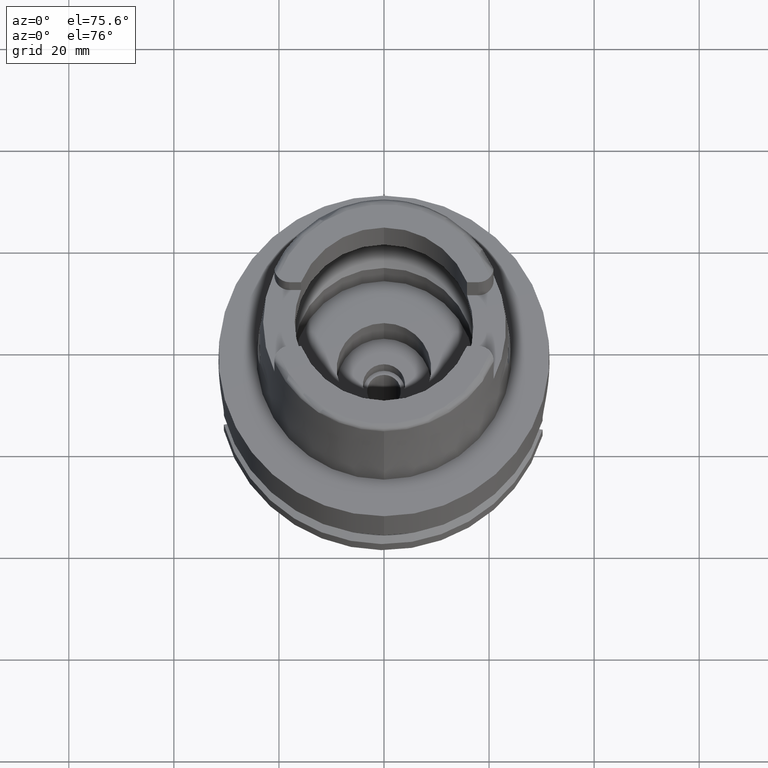
[diagram: clean part render]
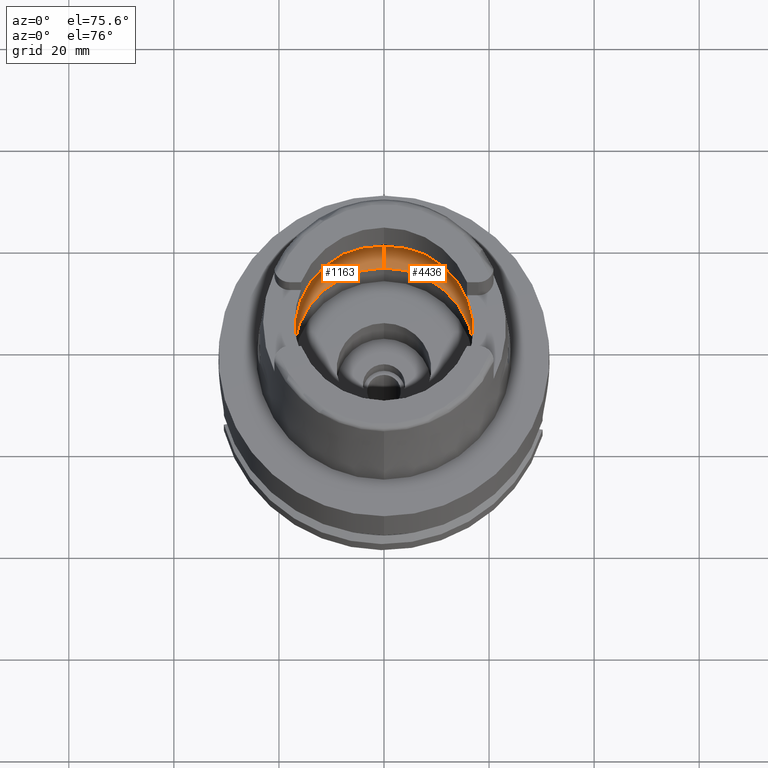
[diagram: same view with one multi-face feature highlighted, each face labeled with its STEP entity id]
A machine part, auxiliary view. The highlighted faces form ONE feature: a constant-radius fillet chain: 2 tangent blend faces with common blend radius 8 mm. The faces share edges in the B-rep.
Their STEP definitions:
[1] entity #4436 (Torus):
#112 = EDGE_CURVE ( 'NONE', #2131, #3976, #2647, .T. ) ;
#156 = CARTESIAN_POINT ( 'NONE',  ( 0.0000000000000000000, -17.25000000000000000, 0.1500000000000999700 ) ) ;
#176 = DIRECTION ( 'NONE',  ( 0.9922879323327794543, -0.1239542631244973381, 0.0000000000000000000 ) ) ;
#238 = CIRCLE ( 'NONE', #866, 17.25000000000000000 ) ;
#284 = CARTESIAN_POINT ( 'NONE',  ( 19.94501428475999916, 0.0000000000000000000, 5.250000000000000000 ) ) ;
#391 = CARTESIAN_POINT ( 'NONE',  ( 19.93856665794220717, -0.8185641889834129881, 5.338679171497147991 ) ) ;
#531 = VERTEX_POINT ( 'NONE', #156 ) ;
#559 = CIRCLE ( 'NONE', #1275, 20.00000000000001421 ) ;
#569 = AXIS2_PLACEMENT_3D ( 'NONE', #1968, #5433, #2794 ) ;
#578 = AXIS2_PLACEMENT_3D ( 'NONE', #2830, #3745, #5069 ) ;
#585 = CARTESIAN_POINT ( 'NONE',  ( 19.88059069913697741, 2.158394907212094260, 5.925188472888706315 ) ) ;
#628 = EDGE_CURVE ( 'NONE', #3976, #3018, #4101, .T. ) ;
#637 = VERTEX_POINT ( 'NONE', #4102 ) ;
#675 = CARTESIAN_POINT ( 'NONE',  ( 19.92208759317466615, 1.429891859894064865, 5.533074159368561062 ) ) ;
#727 = B_SPLINE_CURVE_WITH_KNOTS ( 'NONE', 3,
 ( #998, #4438, #585, #2285, #3306, #4527, #4122, #675, #5399, #2786, #4180, #1509, #3246, #2367, #284 ),
 .UNSPECIFIED., .F., .F.,
 ( 4, 2, 2, 1, 1, 1, 2, 2, 4 ),
 ( 0.0000000000000000000, 0.2499999999999977796, 0.3749999999999970024, 0.4374999999999967248, 0.4687499999999964473, 0.4843749999999962252, 0.4921874999999961142, 0.4999999999999960032, 1.000000000000000000 ),
 .UNSPECIFIED. ) ;
#743 = ORIENTED_EDGE ( 'NONE', *, *, #835, .F. ) ;
#811 = CARTESIAN_POINT ( 'NONE',  ( 19.93655177456163941, -0.9261205412522953706, 5.364559693844707766 ) ) ;
#835 = EDGE_CURVE ( 'NONE', #3018, #637, #727, .T. ) ;
#866 = AXIS2_PLACEMENT_3D ( 'NONE', #2495, #1273, #4386 ) ;
#998 = CARTESIAN_POINT ( 'NONE',  ( 19.84575864665999845, 2.479085262491000030, 6.186348233825000875 ) ) ;
#1072 = ORIENTED_EDGE ( 'NONE', *, *, #112, .F. ) ;
#1191 = TOROIDAL_SURFACE ( 'NONE', #569, 12.00000000000000000, 8.000000000000000000 ) ;
#1226 = CARTESIAN_POINT ( 'NONE',  ( 19.92607280685506410, -1.317062051809039680, 5.488890658979321380 ) ) ;
#1253 = ORIENTED_EDGE ( 'NONE', *, *, #3017, .F. ) ;
#1273 = DIRECTION ( 'NONE',  ( 0.0000000000000000000, 0.0000000000000000000, 1.000000000000000000 ) ) ;
#1275 = AXIS2_PLACEMENT_3D ( 'NONE', #2118, #4349, #176 ) ;
#1379 = CARTESIAN_POINT ( 'NONE',  ( 0.0000000000000000000, 20.00000000000000000, 6.186348233825000875 ) ) ;
#1443 = EDGE_CURVE ( 'NONE', #531, #2131, #238, .T. ) ;
#1472 = CARTESIAN_POINT ( 'NONE',  ( 19.84575864665999845, -2.479085262491000030, 6.186348233825000875 ) ) ;
#1509 = CARTESIAN_POINT ( 'NONE',  ( 19.92547292124043068, 1.334858430820499153, 5.495617893788070418 ) ) ;
#1541 = FACE_OUTER_BOUND ( 'NONE', #2235, .T. ) ;
#1675 = CARTESIAN_POINT ( 'NONE',  ( 19.92840408989147960, -1.244367451165427463, 5.462313551788925636 ) ) ;
#1735 = ORIENTED_EDGE ( 'NONE', *, *, #5512, .T. ) ;
#1754 = B_SPLINE_CURVE_WITH_KNOTS ( 'NONE', 3,
 ( #3815, #2094, #2504, #391, #811, #4667, #5542, #1675, #4239, #3384, #1226, #2930, #5047, #5102, #5508 ),
 .UNSPECIFIED., .F., .F.,
 ( 4, 2, 2, 1, 1, 1, 2, 2, 4 ),
 ( 0.0000000000000000000, 0.2499999999999987232, 0.3749999999999981126, 0.4374999999999980016, 0.4687499999999979461, 0.4843749999999978906, 0.4921874999999978906, 0.4999999999999978906, 1.000000000000000000 ),
 .UNSPECIFIED. ) ;
#1755 = EDGE_CURVE ( 'NONE', #637, #5338, #1754, .T. ) ;
#1812 = CARTESIAN_POINT ( 'NONE',  ( 0.0000000000000000000, 12.00000000000000000, 6.186348233825000875 ) ) ;
#1942 = AXIS2_PLACEMENT_3D ( 'NONE', #1812, #3170, #3931 ) ;
#1968 = CARTESIAN_POINT ( 'NONE',  ( 0.0000000000000000000, 0.0000000000000000000, 6.186348233825000875 ) ) ;
#2094 = CARTESIAN_POINT ( 'NONE',  ( 19.94501428475999916, -0.2480014564252240872, 5.250000000000000000 ) ) ;
#2118 = CARTESIAN_POINT ( 'NONE',  ( 0.0000000000000000000, 0.0000000000000000000, 6.186348233825000875 ) ) ;
#2131 = VERTEX_POINT ( 'NONE', #4542 ) ;
#2235 = EDGE_LOOP ( 'NONE', ( #743, #4852, #1072, #2537, #1735, #1253, #4518 ) ) ;
#2285 = CARTESIAN_POINT ( 'NONE',  ( 19.90056963212105856, 1.871013146672793503, 5.748159224275968704 ) ) ;
#2367 = CARTESIAN_POINT ( 'NONE',  ( 19.94501428475999560, 0.4959066315522072665, 5.250000000000000000 ) ) ;
#2453 = DIRECTION ( 'NONE',  ( 0.0000000000000000000, 0.0000000000000000000, -1.000000000000000000 ) ) ;
#2495 = CARTESIAN_POINT ( 'NONE',  ( 0.0000000000000000000, 0.0000000000000000000, 0.1500000000000999700 ) ) ;
#2504 = CARTESIAN_POINT ( 'NONE',  ( 19.94340237805554494, -0.4850180025758214497, 5.274610396208616159 ) ) ;
#2537 = ORIENTED_EDGE ( 'NONE', *, *, #1443, .F. ) ;
#2647 = CIRCLE ( 'NONE', #1942, 7.999999999999992895 ) ;
#2786 = CARTESIAN_POINT ( 'NONE',  ( 19.92467892137705832, 1.357954799800392465, 5.504500142502393167 ) ) ;
#2794 = DIRECTION ( 'NONE',  ( 0.0000000000000000000, -1.000000000000000000, 0.0000000000000000000 ) ) ;
#2830 = CARTESIAN_POINT ( 'NONE',  ( 0.0000000000000000000, -12.00000000000000000, 6.186348233825000875 ) ) ;
#2930 = CARTESIAN_POINT ( 'NONE',  ( 19.92591688601885025, -1.321756895885540795, 5.490652547663943395 ) ) ;
#3006 = CARTESIAN_POINT ( 'NONE',  ( 0.0000000000000000000, -20.00000000000000000, 6.186348233825000875 ) ) ;
#3017 = EDGE_CURVE ( 'NONE', #5338, #4043, #559, .T. ) ;
#3018 = VERTEX_POINT ( 'NONE', #5314 ) ;
#3170 = DIRECTION ( 'NONE',  ( 1.000000000000000000, 0.0000000000000000000, 0.0000000000000000000 ) ) ;
#3246 = CARTESIAN_POINT ( 'NONE',  ( 19.93856764937210002, 0.9457748455385684982, 5.348171637975688064 ) ) ;
#3306 = CARTESIAN_POINT ( 'NONE',  ( 19.90654648685200812, 1.769930501895055741, 5.691839127009138188 ) ) ;
#3334 = DIRECTION ( 'NONE',  ( 0.0000000000000000000, 1.000000000000000000, 0.0000000000000000000 ) ) ;
#3384 = CARTESIAN_POINT ( 'NONE',  ( 19.92646948702060428, -1.305026996780979109, 5.484399654313516059 ) ) ;
#3745 = DIRECTION ( 'NONE',  ( -1.000000000000000000, 0.0000000000000000000, 0.0000000000000000000 ) ) ;
#3815 = CARTESIAN_POINT ( 'NONE',  ( 19.94501428475999916, 0.0000000000000000000, 5.250000000000000000 ) ) ;
#3920 = AXIS2_PLACEMENT_3D ( 'NONE', #5031, #2453, #3334 ) ;
#3931 = DIRECTION ( 'NONE',  ( 0.0000000000000000000, 0.6562500000000006661, -0.7545435292281016393 ) ) ;
#3976 = VERTEX_POINT ( 'NONE', #1379 ) ;
#4043 = VERTEX_POINT ( 'NONE', #3006 ) ;
#4101 = CIRCLE ( 'NONE', #3920, 20.00000000000000000 ) ;
#4102 = CARTESIAN_POINT ( 'NONE',  ( 19.94501428475999916, 0.0000000000000000000, 5.250000000000000000 ) ) ;
#4122 = CARTESIAN_POINT ( 'NONE',  ( 19.91820208730433706, 1.528663205432394978, 5.574770377084123929 ) ) ;
#4180 = CARTESIAN_POINT ( 'NONE',  ( 19.92518065070698441, 1.343443539030370948, 5.498897323770085777 ) ) ;
#4239 = CARTESIAN_POINT ( 'NONE',  ( 19.92705978488601559, -1.286927501709047350, 5.477698479286130961 ) ) ;
#4349 = DIRECTION ( 'NONE',  ( 0.0000000000000000000, 0.0000000000000000000, -1.000000000000000000 ) ) ;
#4386 = DIRECTION ( 'NONE',  ( 0.0000000000000000000, -1.000000000000000000, 0.0000000000000000000 ) ) ;
#4436 = ADVANCED_FACE ( 'NONE', ( #1541 ), #1191, .F. ) ;
#4438 = CARTESIAN_POINT ( 'NONE',  ( 19.86454025209263818, 2.328733350789459422, 6.053874409961051306 ) ) ;
#4518 = ORIENTED_EDGE ( 'NONE', *, *, #1755, .F. ) ;
#4527 = CARTESIAN_POINT ( 'NONE',  ( 19.91448758455282686, 1.610401092887198793, 5.612873060275235026 ) ) ;
#4542 = CARTESIAN_POINT ( 'NONE',  ( 0.0000000000000000000, 17.25000000000000000, 0.1500000000000999700 ) ) ;
#4622 = CIRCLE ( 'NONE', #578, 7.999999999999992895 ) ;
#4667 = CARTESIAN_POINT ( 'NONE',  ( 19.93292498447662808, -1.081634996230508072, 5.408973391345252679 ) ) ;
#4852 = ORIENTED_EDGE ( 'NONE', *, *, #628, .F. ) ;
#5031 = CARTESIAN_POINT ( 'NONE',  ( 0.0000000000000000000, 0.0000000000000000000, 6.186348233825000875 ) ) ;
#5047 = CARTESIAN_POINT ( 'NONE',  ( 19.90996057472179359, -1.795819818635375986, 5.670329850438289299 ) ) ;
#5069 = DIRECTION ( 'NONE',  ( 0.0000000000000000000, -0.6562500000000006661, -0.7545435292281016393 ) ) ;
#5102 = CARTESIAN_POINT ( 'NONE',  ( 19.88332298883960547, -2.178372382681698749, 5.921392606572648099 ) ) ;
#5314 = CARTESIAN_POINT ( 'NONE',  ( 19.84575864665999845, 2.479085262491000030, 6.186348233825000875 ) ) ;
#5338 = VERTEX_POINT ( 'NONE', #1472 ) ;
#5399 = CARTESIAN_POINT ( 'NONE',  ( 19.92391832594157819, 1.379661882597366551, 5.512959091754375152 ) ) ;
#5433 = DIRECTION ( 'NONE',  ( 0.0000000000000000000, 0.0000000000000000000, -1.000000000000000000 ) ) ;
#5508 = CARTESIAN_POINT ( 'NONE',  ( 19.84575864665999845, -2.479085262491000030, 6.186348233825000875 ) ) ;
#5512 = EDGE_CURVE ( 'NONE', #531, #4043, #4622, .T. ) ;
#5542 = CARTESIAN_POINT ( 'NONE',  ( 19.93096047318056918, -1.157940144637055413, 5.432579051136762871 ) ) ;
[2] entity #1163 (Torus):
#14 = EDGE_CURVE ( 'NONE', #2131, #531, #2284, .T. ) ;
#112 = EDGE_CURVE ( 'NONE', #2131, #3976, #2647, .T. ) ;
#156 = CARTESIAN_POINT ( 'NONE',  ( 0.0000000000000000000, -17.25000000000000000, 0.1500000000000999700 ) ) ;
#301 = FACE_OUTER_BOUND ( 'NONE', #4499, .T. ) ;
#353 = CARTESIAN_POINT ( 'NONE',  ( -19.91448534792939640, -1.610508948476730318, 5.612924528917788258 ) ) ;
#454 = EDGE_CURVE ( 'NONE', #1354, #2035, #3274, .T. ) ;
#531 = VERTEX_POINT ( 'NONE', #156 ) ;
#543 = CARTESIAN_POINT ( 'NONE',  ( 0.0000000000000000000, 0.0000000000000000000, 0.1500000000000999700 ) ) ;
#555 = CIRCLE ( 'NONE', #2956, 20.00000000000001421 ) ;
#562 = CARTESIAN_POINT ( 'NONE',  ( -19.84575864665999845, 2.479085262491000030, 6.186348233825000875 ) ) ;
#578 = AXIS2_PLACEMENT_3D ( 'NONE', #2830, #3745, #5069 ) ;
#860 = AXIS2_PLACEMENT_3D ( 'NONE', #2859, #1076, #4941 ) ;
#936 = ORIENTED_EDGE ( 'NONE', *, *, #5512, .F. ) ;
#949 = CARTESIAN_POINT ( 'NONE',  ( -19.90996163222863657, 1.795769164608234325, 5.670285425949863622 ) ) ;
#975 = CARTESIAN_POINT ( 'NONE',  ( -19.92706167414715424, 1.286758763272738637, 5.477636828633105637 ) ) ;
#982 = ORIENTED_EDGE ( 'NONE', *, *, #14, .F. ) ;
#1003 = CARTESIAN_POINT ( 'NONE',  ( -19.88332336789530785, 2.178369348232300773, 5.921389932944421730 ) ) ;
#1076 = DIRECTION ( 'NONE',  ( 0.0000000000000000000, 0.0000000000000000000, -1.000000000000000000 ) ) ;
#1163 = ADVANCED_FACE ( 'NONE', ( #301 ), #5170, .F. ) ;
#1178 = CARTESIAN_POINT ( 'NONE',  ( -19.94501428475999560, -0.4960410447731051775, 5.249999999999998224 ) ) ;
#1308 = DIRECTION ( 'NONE',  ( 0.0000000000000000000, 0.0000000000000000000, 1.000000000000000000 ) ) ;
#1336 = DIRECTION ( 'NONE',  ( 0.0000000000000000000, 1.000000000000000000, 0.0000000000000000000 ) ) ;
#1354 = VERTEX_POINT ( 'NONE', #3377 ) ;
#1379 = CARTESIAN_POINT ( 'NONE',  ( 0.0000000000000000000, 20.00000000000000000, 6.186348233825000875 ) ) ;
#1461 = CARTESIAN_POINT ( 'NONE',  ( -19.94501428475999916, 0.0000000000000000000, 5.250000000000000000 ) ) ;
#1577 = CARTESIAN_POINT ( 'NONE',  ( -19.91819969907430732, -1.528787881898505896, 5.574826406045655602 ) ) ;
#1595 = ORIENTED_EDGE ( 'NONE', *, *, #2593, .F. ) ;
#1602 = CARTESIAN_POINT ( 'NONE',  ( -19.93856674118999450, -0.9459643382685588575, 5.348222180801255554 ) ) ;
#1643 = CIRCLE ( 'NONE', #1997, 20.00000000000000000 ) ;
#1689 = CARTESIAN_POINT ( 'NONE',  ( -19.90056792326593893, -1.871072945734564286, 5.748194156571076796 ) ) ;
#1812 = CARTESIAN_POINT ( 'NONE',  ( 0.0000000000000000000, 12.00000000000000000, 6.186348233825000875 ) ) ;
#1907 = CARTESIAN_POINT ( 'NONE',  ( -19.93292625657251094, 1.081460392893327738, 5.408920836531628140 ) ) ;
#1942 = AXIS2_PLACEMENT_3D ( 'NONE', #1812, #3170, #3931 ) ;
#1997 = AXIS2_PLACEMENT_3D ( 'NONE', #3658, #2019, #4592 ) ;
#2019 = DIRECTION ( 'NONE',  ( 0.0000000000000000000, 0.0000000000000000000, -1.000000000000000000 ) ) ;
#2026 = CARTESIAN_POINT ( 'NONE',  ( -19.86453971831063825, -2.328737623869187257, 6.053878174936200729 ) ) ;
#2035 = VERTEX_POINT ( 'NONE', #3915 ) ;
#2049 = CARTESIAN_POINT ( 'NONE',  ( -19.92517794959959332, -1.343610331912327149, 5.498961333877063318 ) ) ;
#2131 = VERTEX_POINT ( 'NONE', #4542 ) ;
#2265 = DIRECTION ( 'NONE',  ( 0.0000000000000000000, 0.0000000000000000000, -1.000000000000000000 ) ) ;
#2284 = CIRCLE ( 'NONE', #3281, 17.25000000000000000 ) ;
#2341 = CARTESIAN_POINT ( 'NONE',  ( -19.93856733639333711, 0.8184016122554811368, 5.338643284459313243 ) ) ;
#2344 = CARTESIAN_POINT ( 'NONE',  ( 0.0000000000000000000, 0.0000000000000000000, 6.186348233825000875 ) ) ;
#2388 = EDGE_CURVE ( 'NONE', #2820, #1354, #3154, .T. ) ;
#2494 = ORIENTED_EDGE ( 'NONE', *, *, #4429, .F. ) ;
#2593 = EDGE_CURVE ( 'NONE', #2035, #3976, #555, .T. ) ;
#2647 = CIRCLE ( 'NONE', #1942, 7.999999999999992895 ) ;
#2768 = DIRECTION ( 'NONE',  ( -0.9922879323327794543, 0.1239542631244973381, 0.0000000000000000000 ) ) ;
#2820 = VERTEX_POINT ( 'NONE', #3627 ) ;
#2830 = CARTESIAN_POINT ( 'NONE',  ( 0.0000000000000000000, -12.00000000000000000, 6.186348233825000875 ) ) ;
#2859 = CARTESIAN_POINT ( 'NONE',  ( 0.0000000000000000000, 0.0000000000000000000, 6.186348233825000875 ) ) ;
#2956 = AXIS2_PLACEMENT_3D ( 'NONE', #2344, #2265, #2768 ) ;
#3006 = CARTESIAN_POINT ( 'NONE',  ( 0.0000000000000000000, -20.00000000000000000, 6.186348233825000875 ) ) ;
#3154 = B_SPLINE_CURVE_WITH_KNOTS ( 'NONE', 3,
 ( #4199, #2026, #5554, #1689, #5442, #353, #1577, #4222, #3291, #3744, #2049, #3396, #1602, #1178, #3769 ),
 .UNSPECIFIED., .F., .F.,
 ( 4, 2, 2, 1, 1, 1, 2, 2, 4 ),
 ( 0.0000000000000000000, 0.2499999999999968914, 0.3749999999999954481, 0.4374999999999947264, 0.4687499999999943934, 0.4843749999999941713, 0.4921874999999943934, 0.4999999999999945599, 1.000000000000000000 ),
 .UNSPECIFIED. ) ;
#3161 = ORIENTED_EDGE ( 'NONE', *, *, #454, .F. ) ;
#3170 = DIRECTION ( 'NONE',  ( 1.000000000000000000, 0.0000000000000000000, 0.0000000000000000000 ) ) ;
#3173 = CARTESIAN_POINT ( 'NONE',  ( -19.94340254766833098, 0.4848963393937152366, 5.274596353473683052 ) ) ;
#3274 = B_SPLINE_CURVE_WITH_KNOTS ( 'NONE', 3,
 ( #1461, #4411, #3173, #2341, #4046, #1907, #4897, #4500, #975, #3956, #3624, #5258, #949, #1003, #562 ),
 .UNSPECIFIED., .F., .F.,
 ( 4, 2, 2, 1, 1, 1, 2, 2, 4 ),
 ( 0.0000000000000000000, 0.2500000000000017764, 0.3750000000000026090, 0.4375000000000029976, 0.4687500000000033862, 0.4843750000000034417, 0.4921875000000032752, 0.5000000000000031086, 1.000000000000000000 ),
 .UNSPECIFIED. ) ;
#3281 = AXIS2_PLACEMENT_3D ( 'NONE', #543, #1308, #1336 ) ;
#3291 = CARTESIAN_POINT ( 'NONE',  ( -19.92391568384006106, -1.379820152771767061, 5.513021742209446074 ) ) ;
#3377 = CARTESIAN_POINT ( 'NONE',  ( -19.94501428475999916, 0.0000000000000000000, 5.250000000000000000 ) ) ;
#3396 = CARTESIAN_POINT ( 'NONE',  ( -19.92547016831344209, -1.335028391786409419, 5.495682638916796314 ) ) ;
#3624 = CARTESIAN_POINT ( 'NONE',  ( -19.92607479997091247, 1.316895428540626023, 5.488828160328669270 ) ) ;
#3627 = CARTESIAN_POINT ( 'NONE',  ( -19.84575864665999845, -2.479085262491000030, 6.186348233825000875 ) ) ;
#3658 = CARTESIAN_POINT ( 'NONE',  ( 0.0000000000000000000, 0.0000000000000000000, 6.186348233825000875 ) ) ;
#3744 = CARTESIAN_POINT ( 'NONE',  ( -19.92467624382533131, -1.358118166600655208, 5.504563616476665366 ) ) ;
#3745 = DIRECTION ( 'NONE',  ( -1.000000000000000000, 0.0000000000000000000, 0.0000000000000000000 ) ) ;
#3769 = CARTESIAN_POINT ( 'NONE',  ( -19.94501428475999916, 0.0000000000000000000, 5.250000000000000000 ) ) ;
#3915 = CARTESIAN_POINT ( 'NONE',  ( -19.84575864665999845, 2.479085262491000030, 6.186348233825000875 ) ) ;
#3931 = DIRECTION ( 'NONE',  ( 0.0000000000000000000, 0.6562500000000006661, -0.7545435292281016393 ) ) ;
#3956 = CARTESIAN_POINT ( 'NONE',  ( -19.92647143839581503, 1.304859504448080854, 5.484337483337790253 ) ) ;
#3974 = ORIENTED_EDGE ( 'NONE', *, *, #112, .T. ) ;
#3976 = VERTEX_POINT ( 'NONE', #1379 ) ;
#4043 = VERTEX_POINT ( 'NONE', #3006 ) ;
#4046 = CARTESIAN_POINT ( 'NONE',  ( -19.93655266502874568, 0.9259499426792057175, 5.364516364714714491 ) ) ;
#4199 = CARTESIAN_POINT ( 'NONE',  ( -19.84575864665999845, -2.479085262491000030, 6.186348233825000875 ) ) ;
#4222 = CARTESIAN_POINT ( 'NONE',  ( -19.92208503460747337, -1.430038535502192065, 5.533134759062107833 ) ) ;
#4411 = CARTESIAN_POINT ( 'NONE',  ( -19.94501428476000626, 0.2479298819745013871, 5.250000000000000000 ) ) ;
#4429 = EDGE_CURVE ( 'NONE', #4043, #2820, #1643, .T. ) ;
#4499 = EDGE_LOOP ( 'NONE', ( #2494, #936, #982, #3974, #1595, #3161, #4771 ) ) ;
#4500 = CARTESIAN_POINT ( 'NONE',  ( -19.92840583769821095, 1.244196210296658611, 5.462253310888492308 ) ) ;
#4542 = CARTESIAN_POINT ( 'NONE',  ( 0.0000000000000000000, 17.25000000000000000, 0.1500000000000999700 ) ) ;
#4592 = DIRECTION ( 'NONE',  ( 0.0000000000000000000, -1.000000000000000000, 0.0000000000000000000 ) ) ;
#4622 = CIRCLE ( 'NONE', #578, 7.999999999999992895 ) ;
#4771 = ORIENTED_EDGE ( 'NONE', *, *, #2388, .F. ) ;
#4897 = CARTESIAN_POINT ( 'NONE',  ( -19.93096195199203535, 1.157765540344597888, 5.432522363496016915 ) ) ;
#4941 = DIRECTION ( 'NONE',  ( 0.0000000000000000000, -1.000000000000000000, 0.0000000000000000000 ) ) ;
#5069 = DIRECTION ( 'NONE',  ( 0.0000000000000000000, -0.6562500000000006661, -0.7545435292281016393 ) ) ;
#5170 = TOROIDAL_SURFACE ( 'NONE', #860, 12.00000000000000000, 8.000000000000000000 ) ;
#5258 = CARTESIAN_POINT ( 'NONE',  ( -19.92591893665111513, 1.321589401501888306, 5.490589463359009770 ) ) ;
#5442 = CARTESIAN_POINT ( 'NONE',  ( -19.90654456091275648, -1.770007383674442325, 5.691881026707233282 ) ) ;
#5512 = EDGE_CURVE ( 'NONE', #531, #4043, #4622, .T. ) ;
#5554 = CARTESIAN_POINT ( 'NONE',  ( -19.88058967141844491, -2.158413397991807425, 5.925203673437435370 ) ) ;